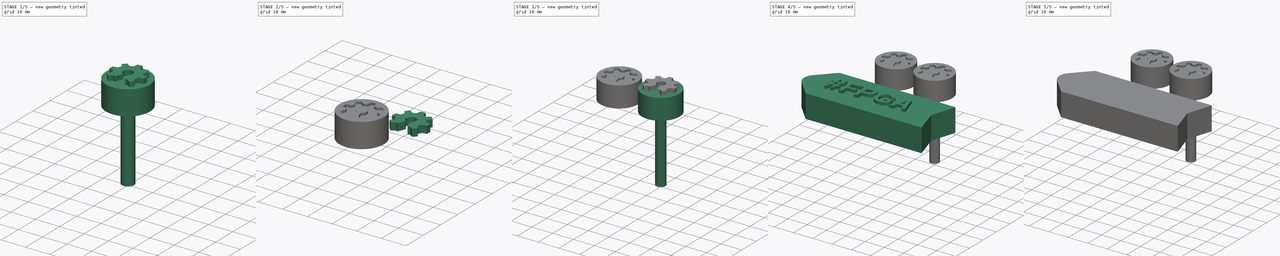
[diagram: build sequence overview — one tinted view per stage of 5, left to right]
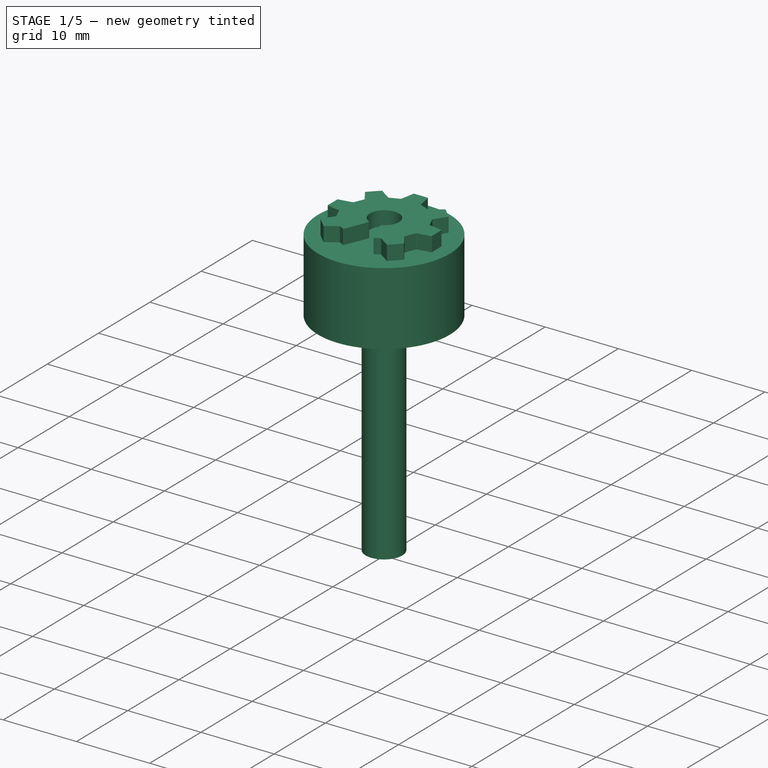
[diagram: stage 1 of 5 — iso view after this stage's code; geometry added in this stage tinted green]
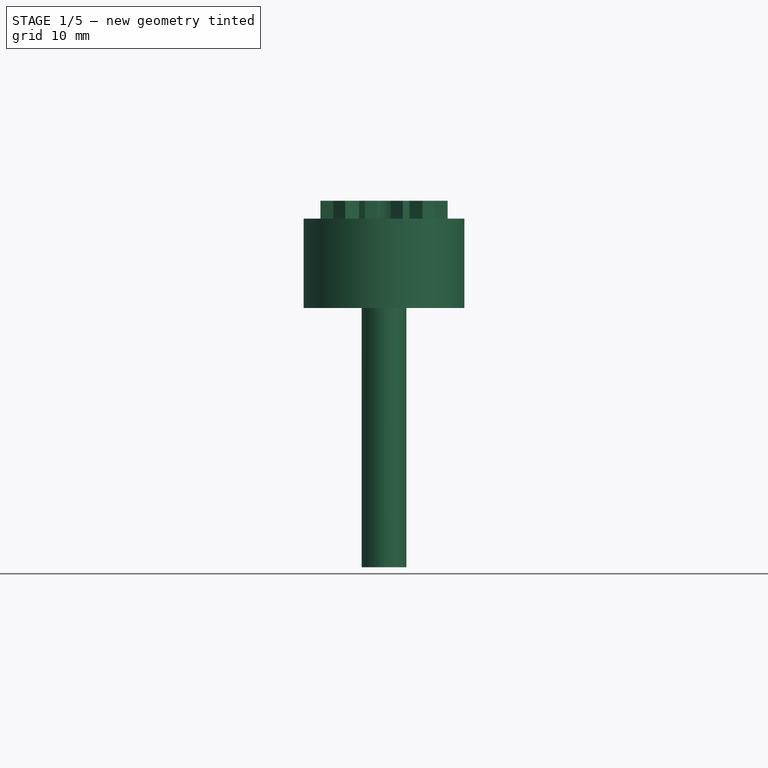
[diagram: stage 1 of 5 — front view after this stage's code; geometry added in this stage tinted green]
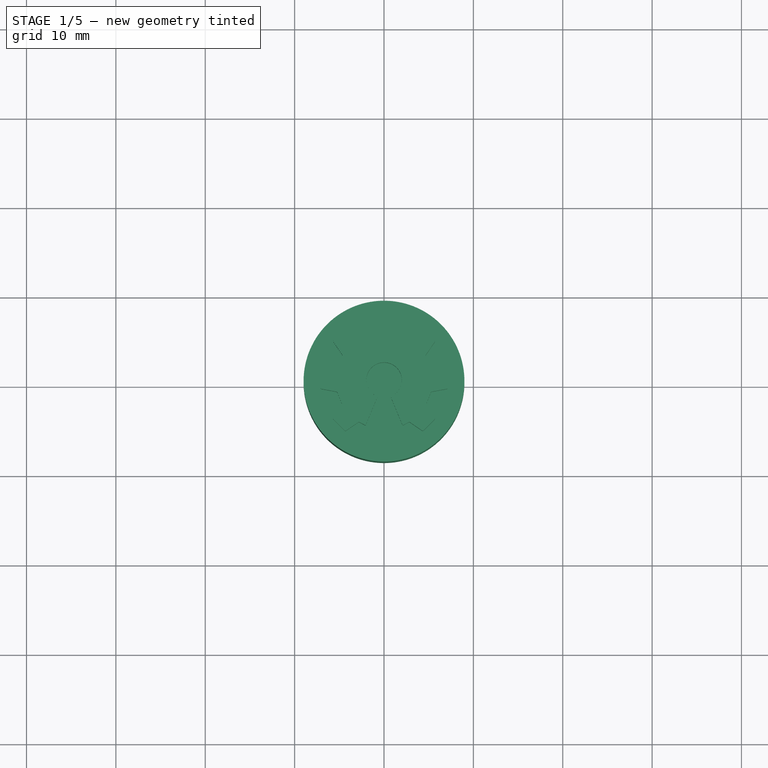
[diagram: stage 1 of 5 — top view after this stage's code; geometry added in this stage tinted green]
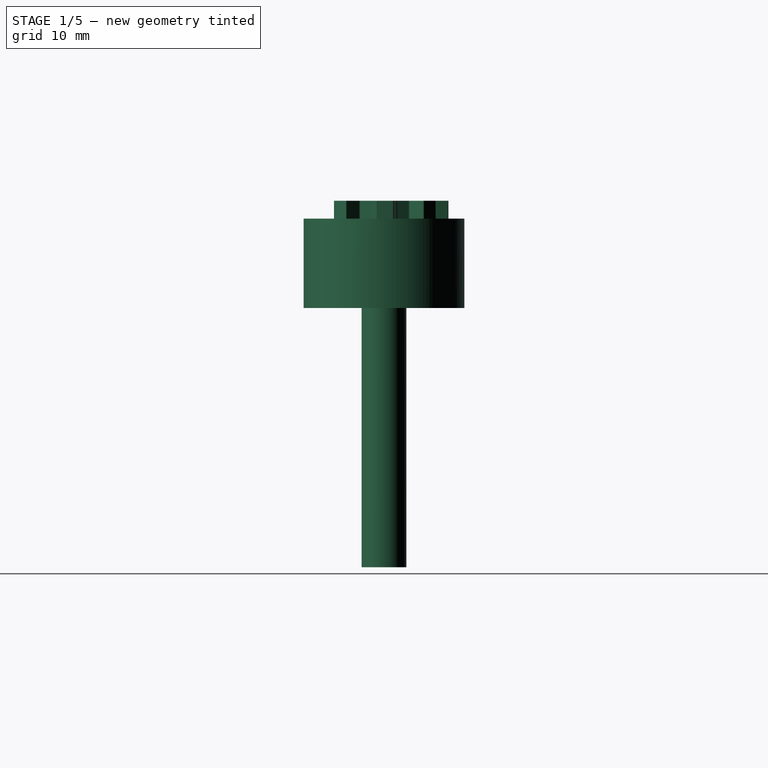
[diagram: stage 1 of 5 — right view after this stage's code; geometry added in this stage tinted green]
FCSTD DOCUMENT  (FreeCAD 0.17R13528 (Git))
Label: Cochecito FPGA
License: All rights reserved
LicenseURL: http://en.wikipedia.org/wiki/All_rights_reserved
objects: Part::Cut×4, Part::Cylinder×4, Part::Extrusion×3, Sketcher::SketchObject×2, Part::Feature×2, PartDesign::Pad×1, Part::Fillet×1, PartDesign::ShapeBinder×1, PartDesign::Pocket×1, PartDesign::Body×1, Part::Part2DObjectPython×1, Part::MultiFuse×1
note: 24 computed .brp shape members not serialized (recipe doc carries the construction recipe); baked Part::Feature solids carry a one-line shape summary decoded from their .brp

FEATURE [Part::Cylinder] Cylinder002  label="Cilindro002"
  Angle = 360
  AttacherType = Attacher::AttachEngine3D
  Height = 10
  Placement = pos=(-20,40,0) rot=(0,0,1;0rad)
  Radius = 9
FEATURE [Part::Cylinder] Cylinder003  label="Cilindro003"
  Angle = 360
  AttacherType = Attacher::AttachEngine3D
  Height = 34
  Placement = pos=(-20,40,-29) rot=(0,0,1;0rad)
  Radius = 2.5
FEATURE [Part::Extrusion] Extrude002
  Base = -> path037
  Dir = (0,0,1)
  DirMode = 2
  FaceMakerClass = Part::FaceMakerBullseye
  LengthFwd = 3
  LengthRev = 0
  Placement = pos=(-0.1,18.2,9) rot=(0,0,1;0rad)
  Solid = true
  Symmetric = false
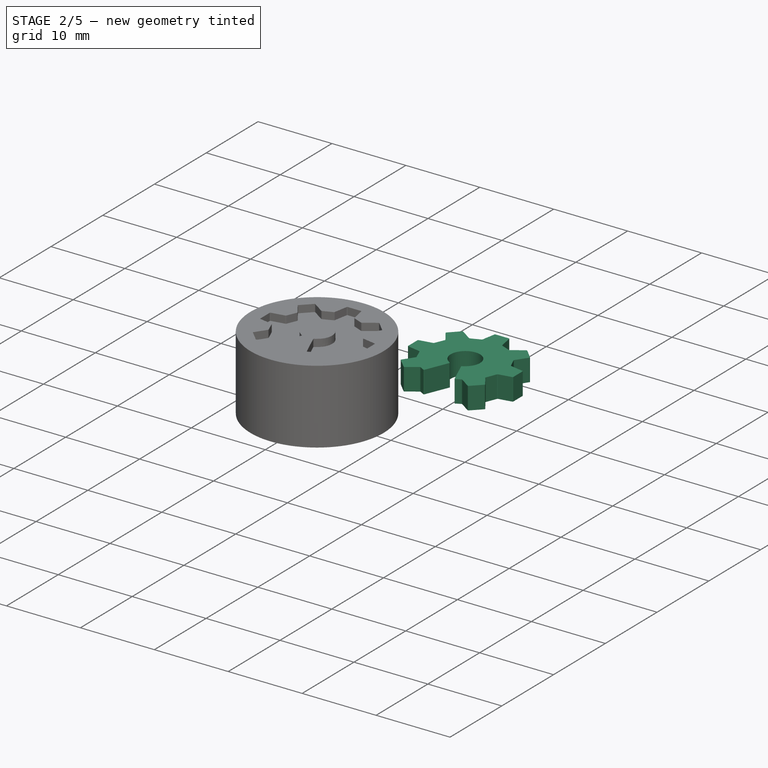
[diagram: stage 2 of 5 — iso view after this stage's code; geometry added in this stage tinted green]
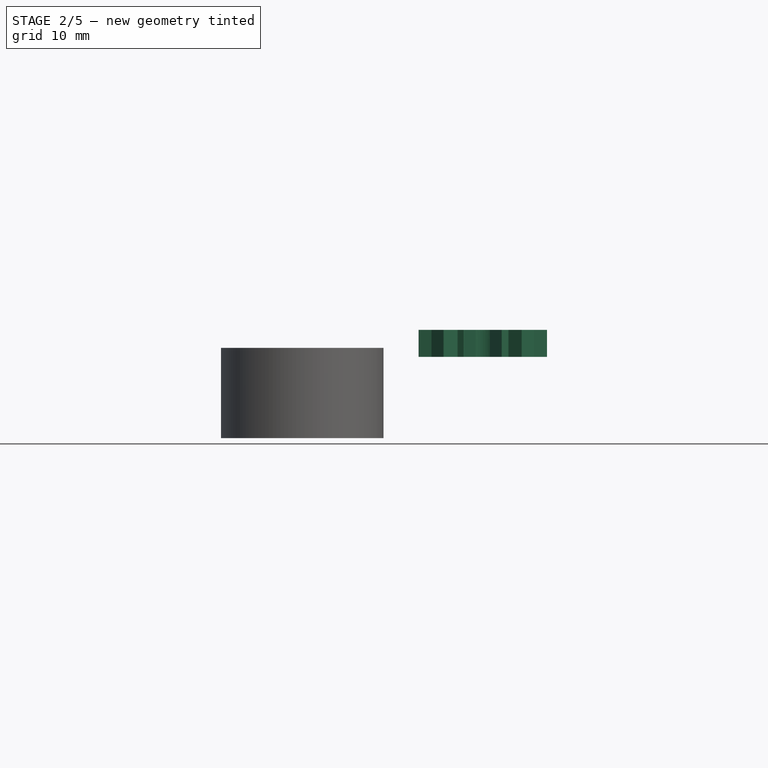
[diagram: stage 2 of 5 — front view after this stage's code; geometry added in this stage tinted green]
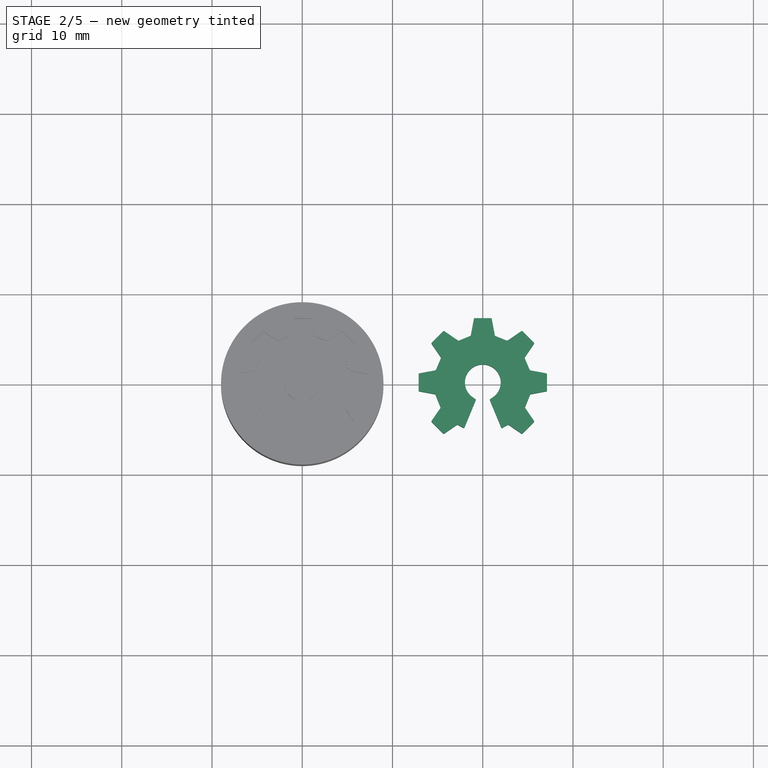
[diagram: stage 2 of 5 — top view after this stage's code; geometry added in this stage tinted green]
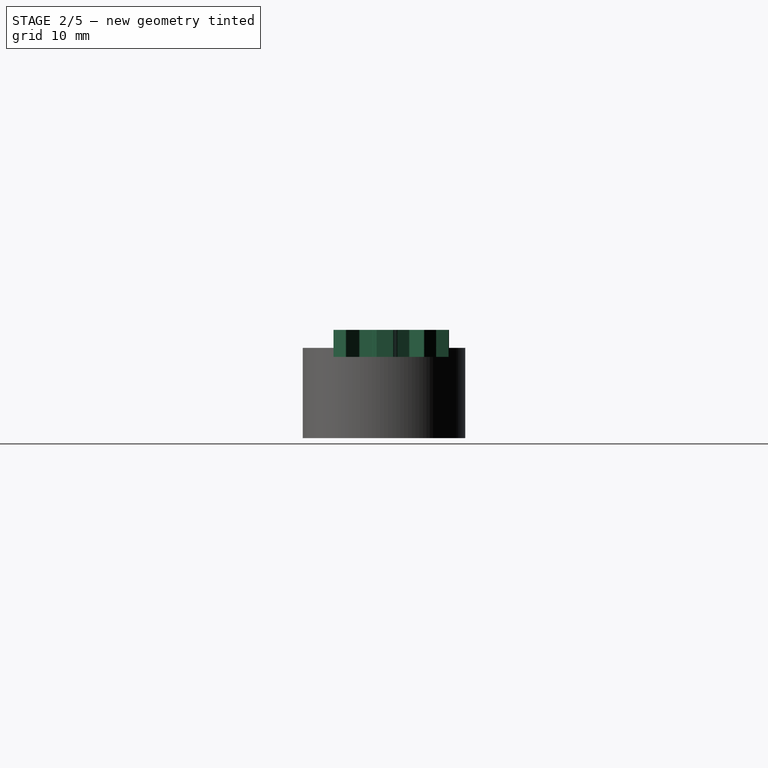
[diagram: stage 2 of 5 — right view after this stage's code; geometry added in this stage tinted green]
FEATURE [Part::Cut] Cut001
  Base = -> Cylinder002
  Tool = -> Cylinder003
FEATURE [Part::Feature] path36
  Placement = pos=(-7,29,0) rot=(0,0,1;0rad)
  shape: bbox 14.22 x 12.8 x 2e-07 mm, 0 faces, 0 solids (baked)
FEATURE [Part::Feature] path037
  Placement = pos=(-27,29,0) rot=(0,0,1;0rad)
  shape: bbox 14.22 x 12.8 x 2e-07 mm, 0 faces, 0 solids (baked)
FEATURE [Part::Extrusion] Extrude001
  Base = -> path36
  Dir = (0,0,1)
  DirMode = 2
  FaceMakerClass = Part::FaceMakerBullseye
  LengthFwd = 3
  LengthRev = 0
  Placement = pos=(-0.1,18.2,9) rot=(0,0,1;0rad)
  Solid = true
  Symmetric = false
FEATURE [Part::Cut] Cut003  label="Rueda"
  Base = -> Cut001
  Tool = -> Extrude002
note: 1 file-system path scrubbed to <path> (originals preserved in the JSON sidecar)
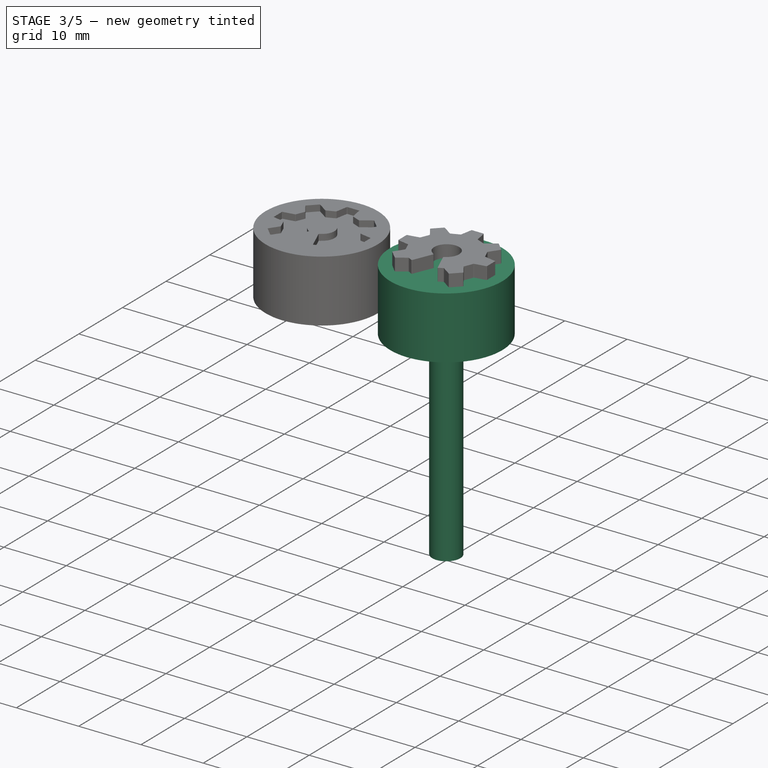
[diagram: stage 3 of 5 — iso view after this stage's code; geometry added in this stage tinted green]
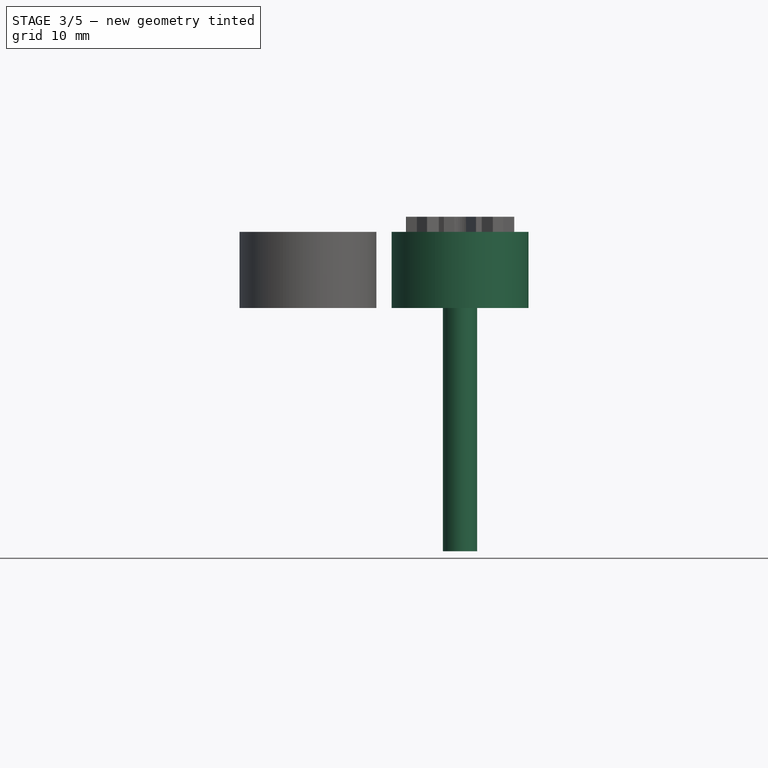
[diagram: stage 3 of 5 — front view after this stage's code; geometry added in this stage tinted green]
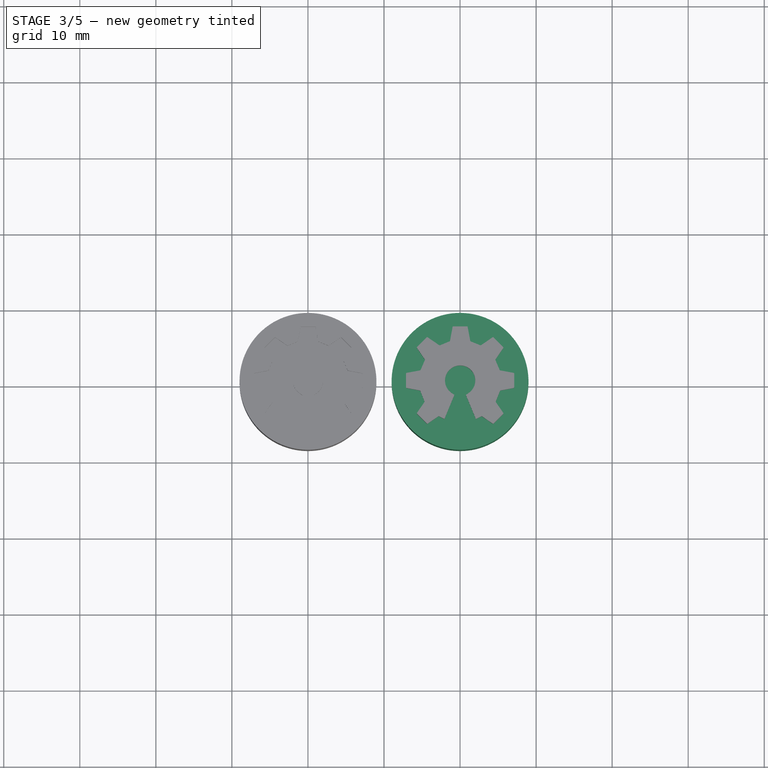
[diagram: stage 3 of 5 — top view after this stage's code; geometry added in this stage tinted green]
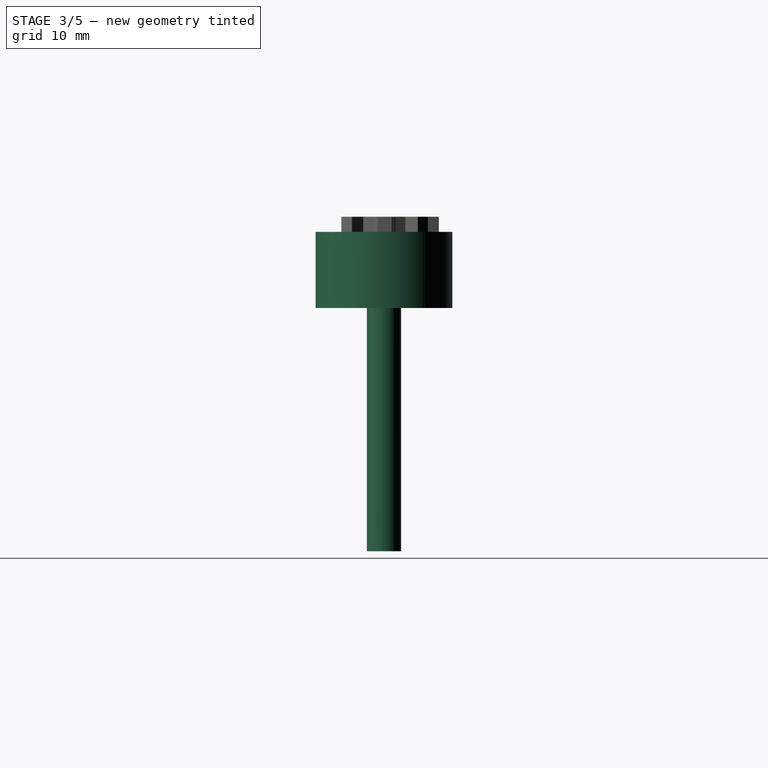
[diagram: stage 3 of 5 — right view after this stage's code; geometry added in this stage tinted green]
FEATURE [Part::Cylinder] Cylinder  label="Cilindro"
  Angle = 360
  AttacherType = Attacher::AttachEngine3D
  Height = 10
  Placement = pos=(0,40,0) rot=(0,0,1;0rad)
  Radius = 9
FEATURE [Part::Cylinder] Cylinder001  label="Cilindro001"
  Angle = 360
  AttacherType = Attacher::AttachEngine3D
  Height = 34
  Placement = pos=(0,40,-32) rot=(0,0,1;0rad)
  Radius = 2.25
FEATURE [Part::MultiFuse] Fusion
  Shapes = -> [Cylinder,Cylinder001]
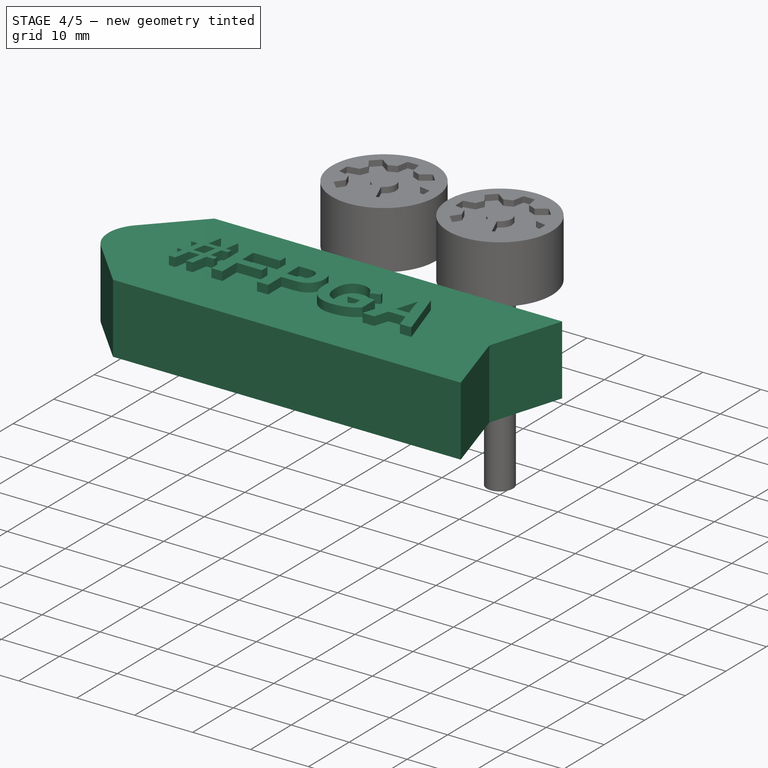
[diagram: stage 4 of 5 — iso view after this stage's code; geometry added in this stage tinted green]
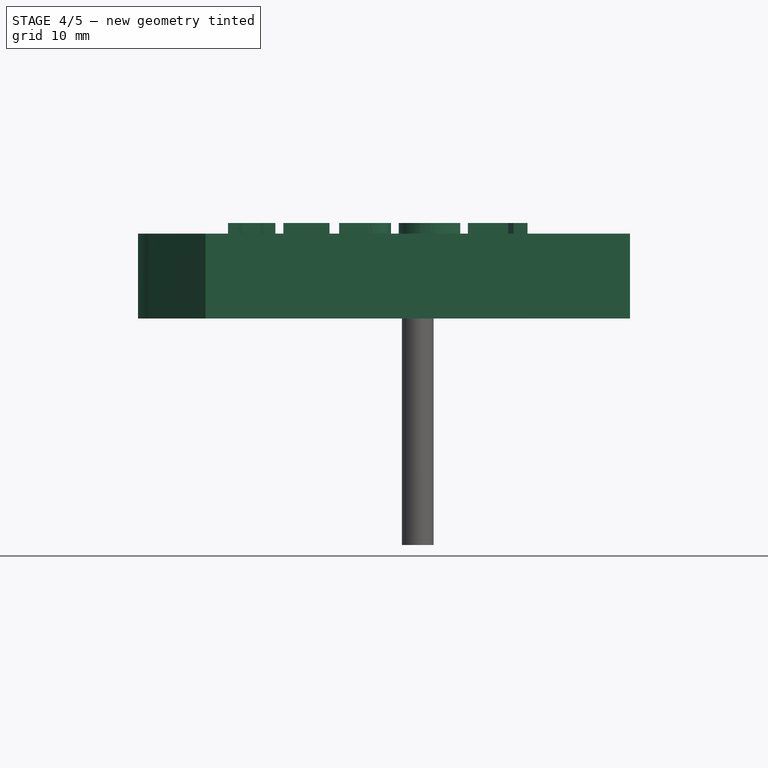
[diagram: stage 4 of 5 — front view after this stage's code; geometry added in this stage tinted green]
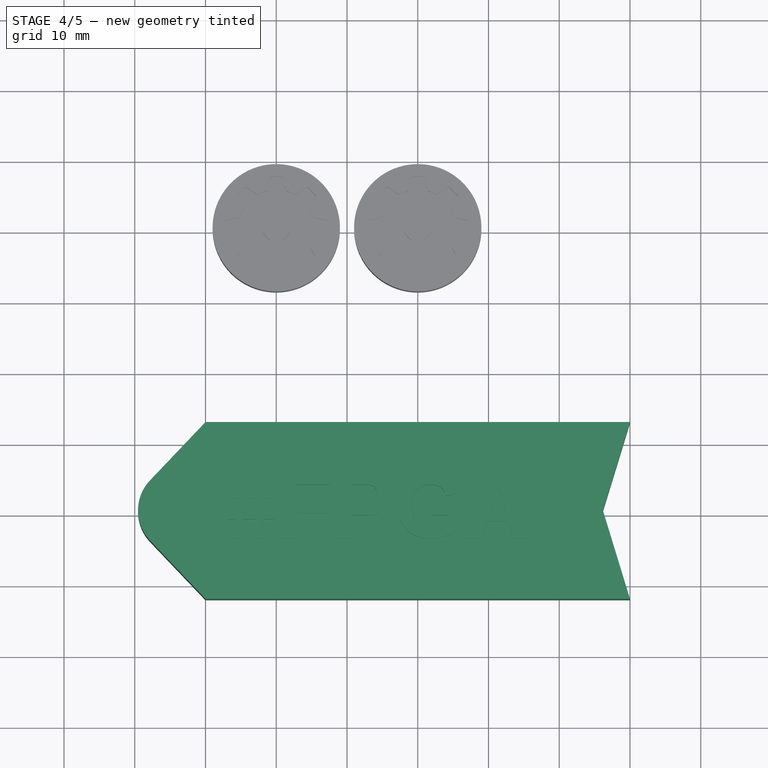
[diagram: stage 4 of 5 — top view after this stage's code; geometry added in this stage tinted green]
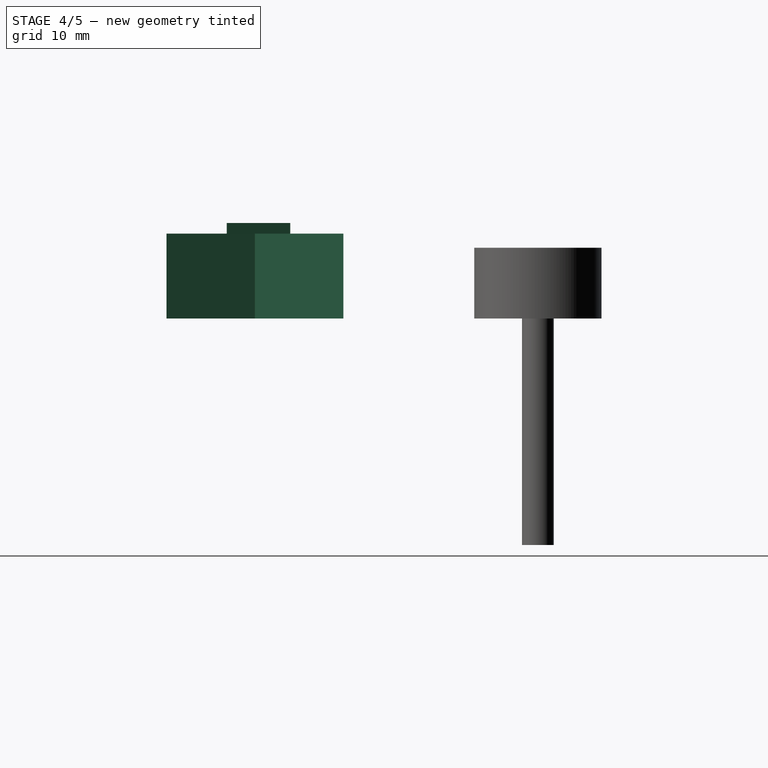
[diagram: stage 4 of 5 — right view after this stage's code; geometry added in this stage tinted green]
FEATURE [Sketcher::SketchObject] Sketch
  MapMode = 5
  Support = -> [XY_Plane]
  sketch-geometry (7):
    g0: LineSegment StartX=-30 StartY=12.5 StartZ=0 EndX=30 EndY=12.5 EndZ=0
    g1: LineSegment StartX=30 StartY=-12.5 StartZ=0 EndX=-30 EndY=-12.5 EndZ=0
    g2: LineSegment StartX=-30 StartY=12.5 StartZ=0 EndX=-37.8358 EndY=4.26262 EndZ=0
    g3: LineSegment StartX=-37.8358 StartY=-4.26262 StartZ=0 EndX=-30 EndY=-12.5 EndZ=0
    g4: ArcOfCircle CenterX=-33.3547 CenterY=0 CenterZ=0 NormalX=0 NormalY=0 NormalZ=1 AngleXU=0 Radius=6.18465 StartAngle=2.38117 EndAngle=3.90201
    g5: LineSegment StartX=30 StartY=12.5 StartZ=0 EndX=26.1763 EndY=0 EndZ=0
    g6: LineSegment StartX=26.1763 StartY=0 StartZ=0 EndX=30 EndY=-12.5 EndZ=0
  constraints (15):
    c: Horizontal(g0)
    c: Horizontal(g1)
    c: Coincident(g0,g2)
    c: Coincident(g3,g1)
    c: Symmetric(g0,g1,g-1)
    c: Equal(g0,g1)
    c: Tangent(g2,g4) = -1.5708
    c: Tangent(g3,g4) = -1.5708
    c: DistanceY(g1,g0) = 25
    c: DistanceX(g0,g0) = 60
    c: Coincident(g0,g5)
    c: PointOnObject(g5,g-1)
    c: Coincident(g5,g6)
    c: Symmetric(g3,g2,g-1)
    c: Coincident(g1,g6)
FEATURE [PartDesign::Pad] Pad
  Length = 12
  Length2 = 100
  Profile = -> Sketch
  Type = 0
FEATURE [PartDesign::Body] Body
  Group = -> [Sketch,Pad,CopyFillet,Sketch001,Pocket]
  Origin = -> BodyOrigin
  Tip = -> Pocket
FEATURE [Part::Part2DObjectPython] ShapeString  # Draft 2D object (typed FeaturePython)
  FontFile = <path>
  Placement = pos=(-35.7976,-26.2172,1.09377) rot=(0.804216,0.493268,0.331547;0.673186rad)
  Size = 10
  String = #FPGA
  Tracking = 0
FEATURE [Part::Extrusion] Extrude
  Base = -> ShapeString
  Dir = (0.365712,-0.465734,0.80582)
  DirMode = 2
  FaceMakerClass = Part::FaceMakerBullseye
  LengthFwd = 3
  LengthRev = 0
  Placement = pos=(13.85,13.03,10.5) rot=(-0.804216,-0.493268,-0.331547;0.673173rad)
  Solid = true
  Symmetric = false
FEATURE [Part::Cut] Cut002  label="Rueda-eje"
  Base = -> Fusion
  Tool = -> Extrude001
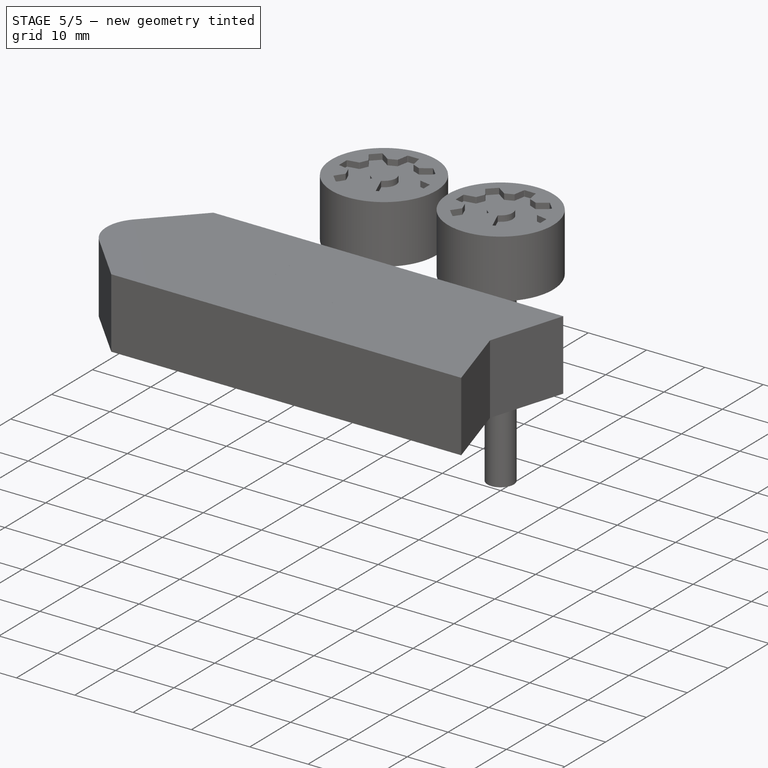
[diagram: stage 5 of 5 — iso view after this stage's code; geometry added in this stage tinted green]
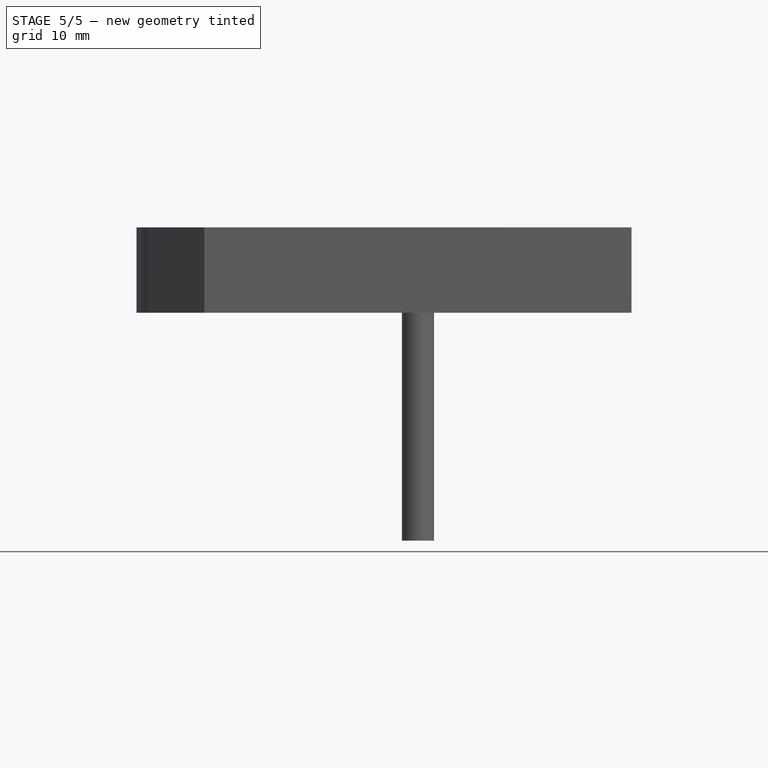
[diagram: stage 5 of 5 — front view after this stage's code; geometry added in this stage tinted green]
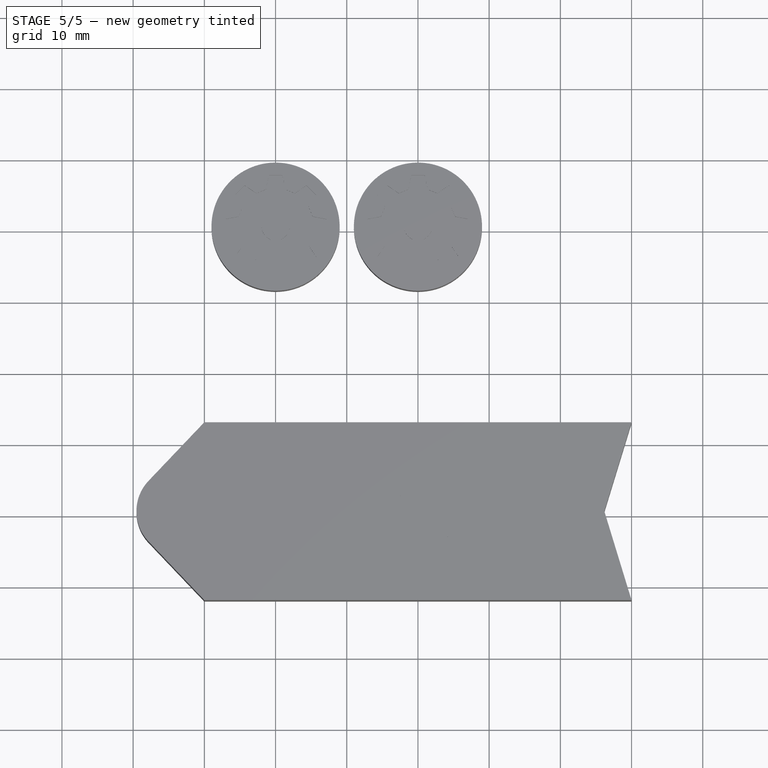
[diagram: stage 5 of 5 — top view after this stage's code; geometry added in this stage tinted green]
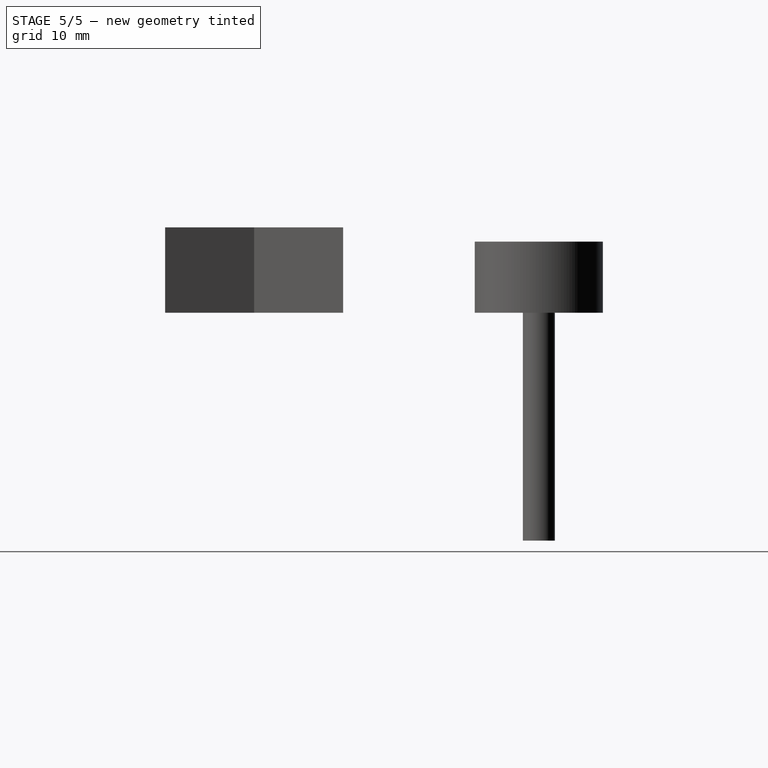
[diagram: stage 5 of 5 — right view after this stage's code; geometry added in this stage tinted green]
FEATURE [Part::Fillet] Fillet
  Base = -> Pad
  Edges = 7 edges r=3: [Edge4,Edge7,Edge10,Edge13,Edge16,Edge19,Edge21]
FEATURE [PartDesign::ShapeBinder] CopyFillet
FEATURE [Sketcher::SketchObject] Sketch001
  ExternalGeometry = -> [CopyFillet]
  MapMode = 5
  Placement = pos=(0,-15,0) rot=(1,0,0;1.5708rad)
  Support = -> [CopyFillet]
  sketch-geometry (2):
    g0: Circle CenterX=18 CenterY=5 CenterZ=0 NormalX=0 NormalY=0 NormalZ=1 AngleXU=0 Radius=2.5
    g1: Circle CenterX=-18 CenterY=5 CenterZ=0 NormalX=0 NormalY=0 NormalZ=1 AngleXU=0 Radius=2.5
  constraints (6):
    c: DistanceY(g-3,g1) = 5
    c: DistanceY(g-3,g0) = 5
    c: Equal(g0,g1)
    c: Radius(g0) = 2.5
    c: DistanceX(g0,g-3) = 12
    c: DistanceX(g-4,g1) = 12
FEATURE [PartDesign::Pocket] Pocket
  BaseFeature = -> Pad
  Length = 5
  Length2 = 100
  Profile = -> Sketch001
  Type = 1
FEATURE [Part::Cut] Cut  label="Carroceria"
  Base = -> Pocket
  Tool = -> Extrude
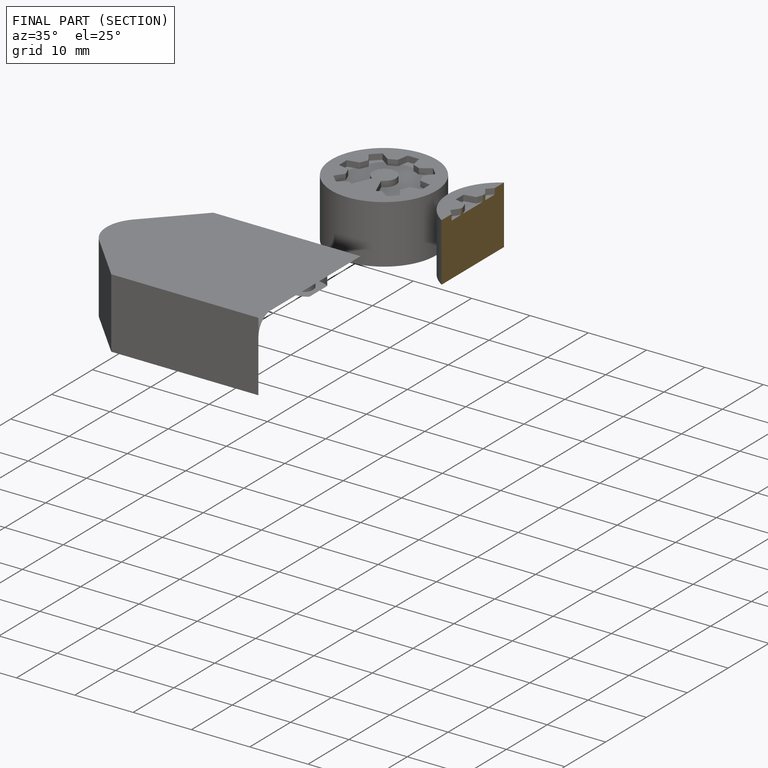
[diagram: finished part — half-section view (interior)]
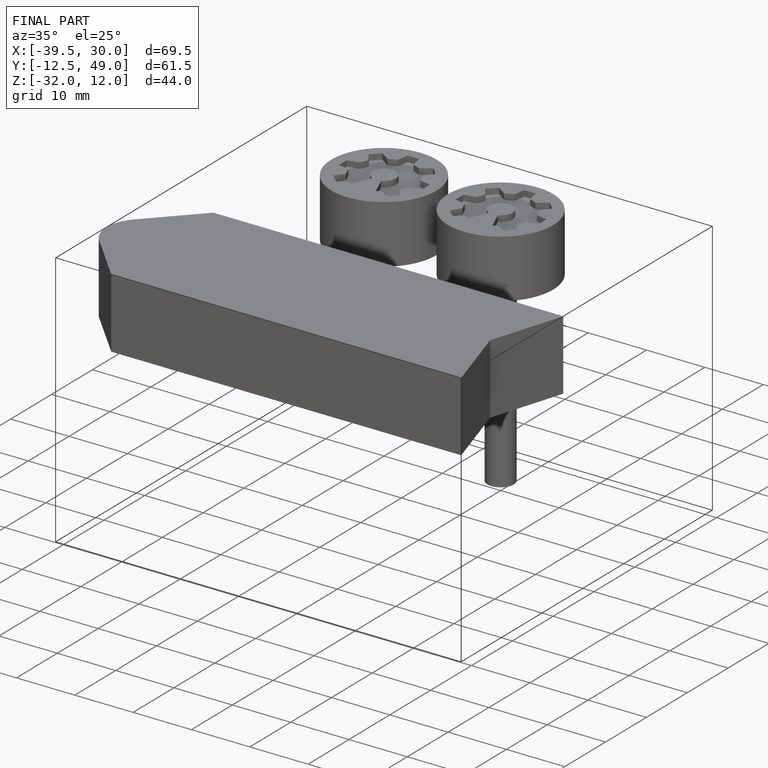
[diagram: finished part — iso view with bounding-box wireframe]
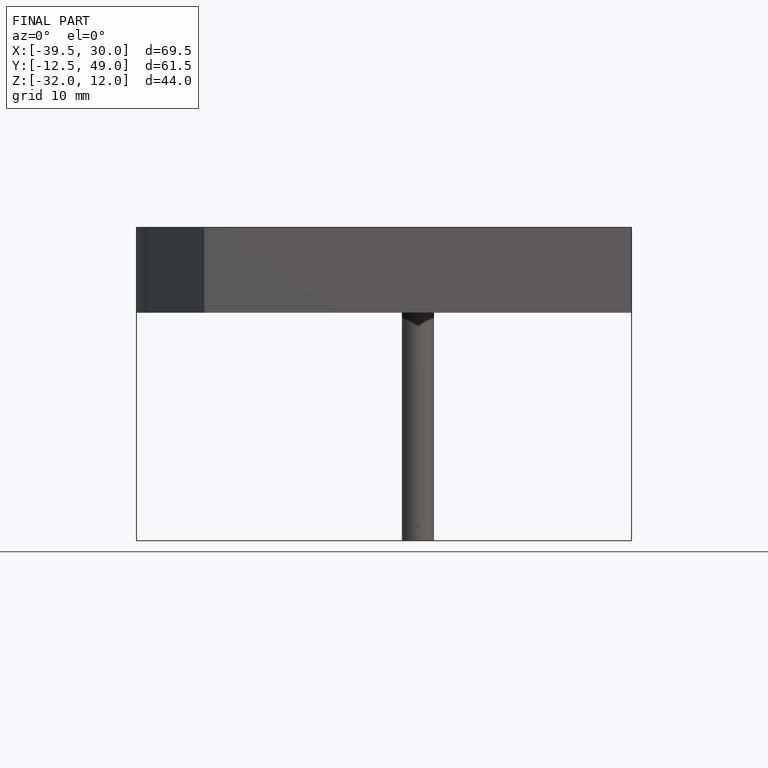
[diagram: finished part — front view with bounding-box wireframe]
